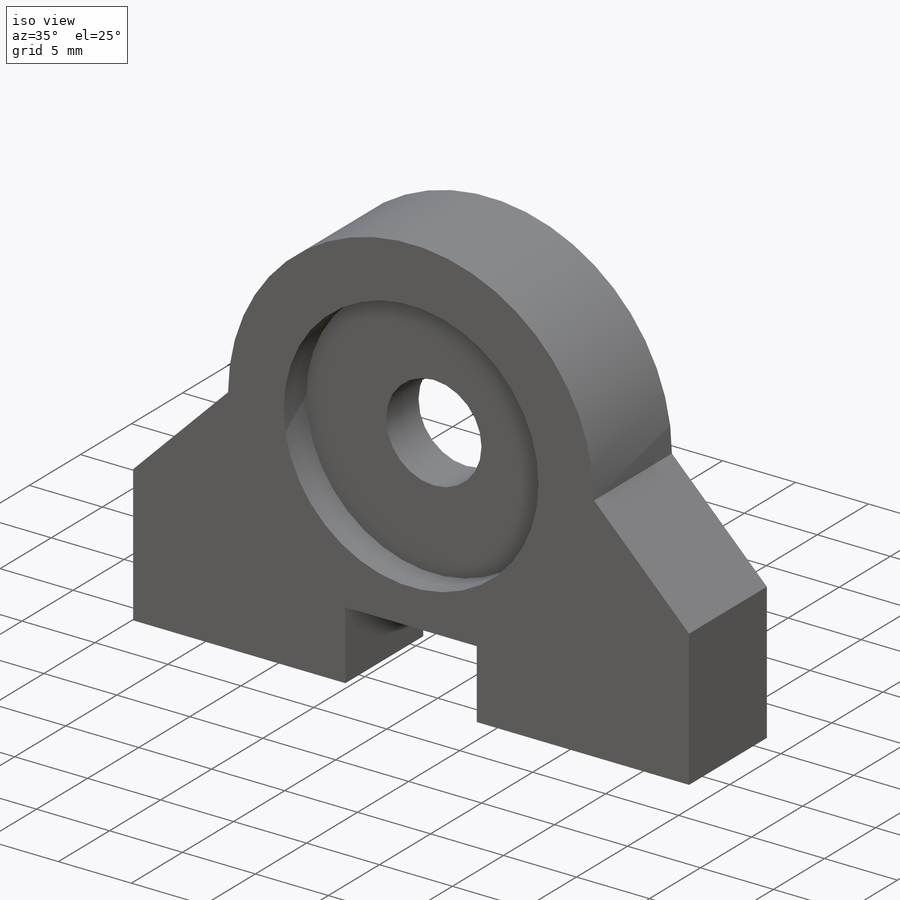
[diagram: iso view]
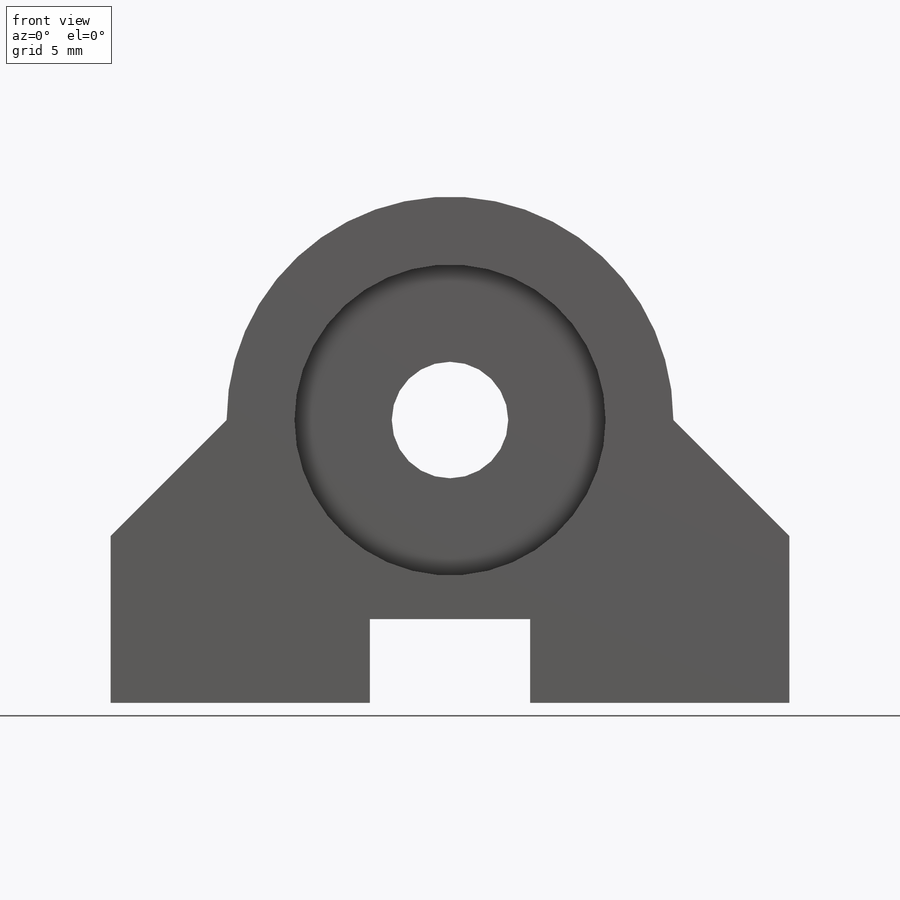
[diagram: front view]
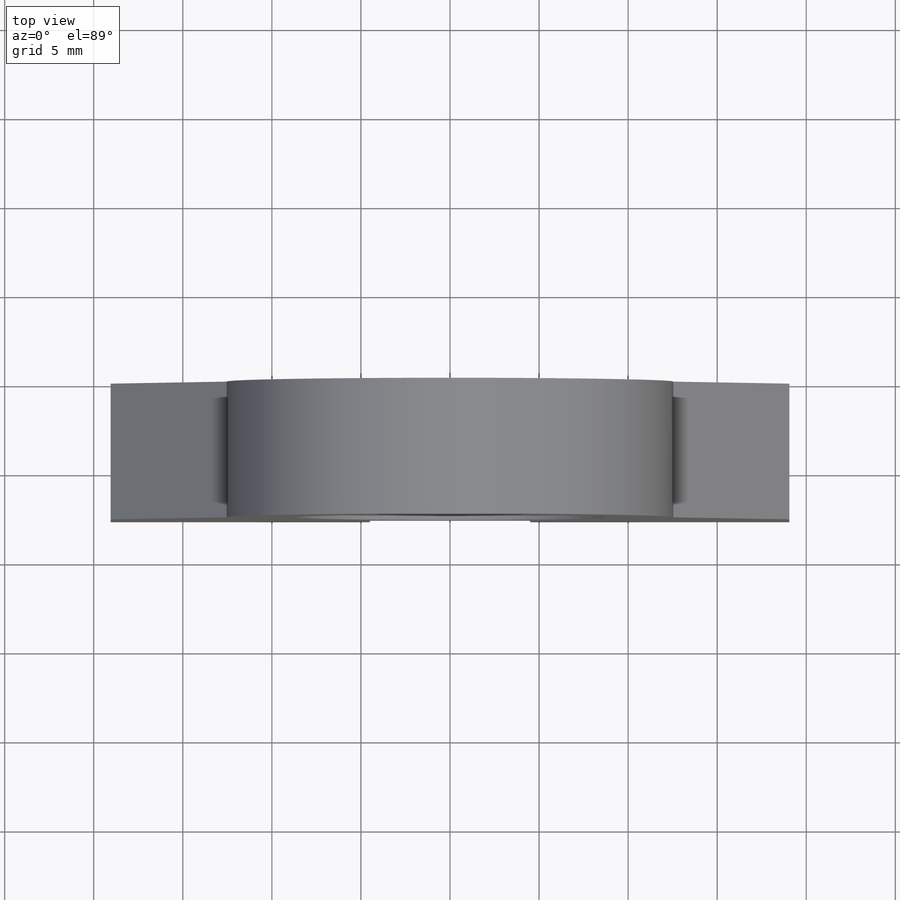
[diagram: top view]
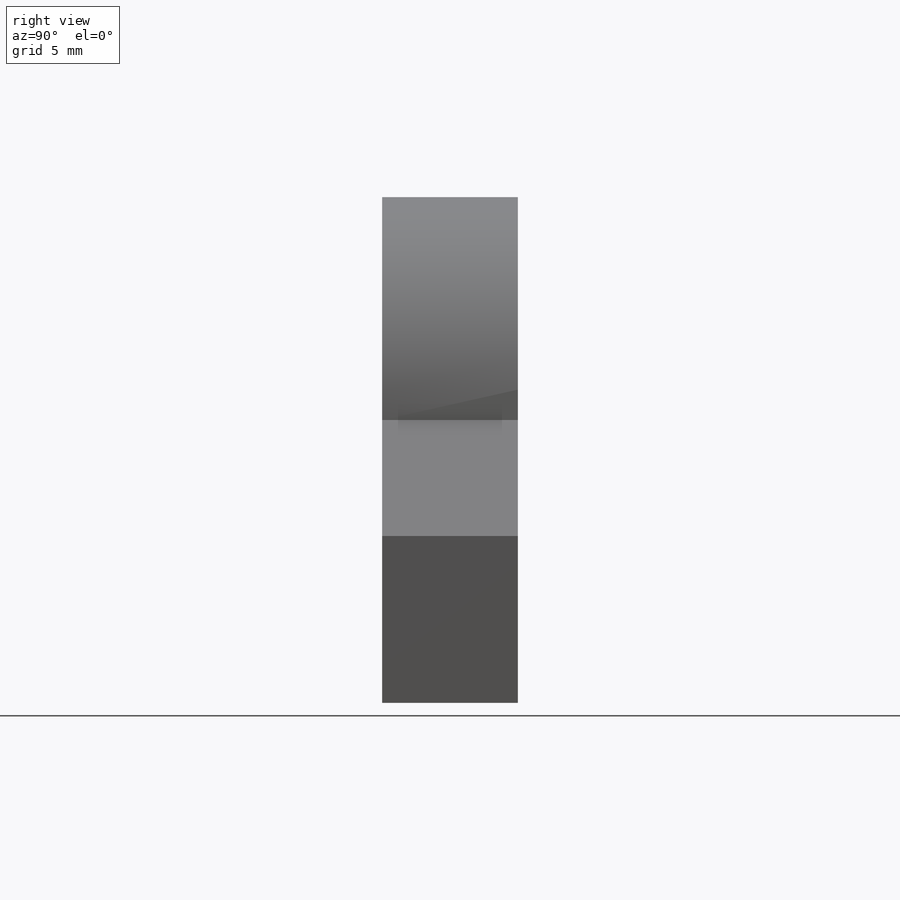
[diagram: right view]
SOLIDWORKS PART (.sldprt)
format: sldprt  version: not decoded by parser v0  size: 351,744 bytes
history: native  units: mm
features: sketch x3, extrude x2, material x1, plane x1, cut_extrude x1 (+13 scaffold rows collapsed)
feature tree (21):
  scaffold x13  (default folders/planes/origin — collapsed)
  material  "Material <not specified>"
  sketch  "Sketch1"  dims[c1.D6=17.4625mm c1.D3=15.875mm c1.D1=9.0mm c1.D2=4.699mm c2.D3=28.448mm c2.D4=31.75mm c2.D5=15.875mm c3.D3=3.81mm c3.D4=~6.176366mm c4.D4=45.0deg c4.D7=38.1mm]
  extrude  "Boss-Extrude1"  Depth=7.62mm
  plane  "Plane1"
  sketch  "Sketch3"  dims[D1=6.5405mm D2=17.4752mm]
  extrude  "Boss-Extrude2"  Depth=1.5875mm
  sketch  "Sketch4"  dims[D1=~3.96748mm D2=11.43mm]
  cut_extrude  "Cut-Extrude1"  Depth=10.16mm
decode coverage: 6 of 6 modeling features carry decoded parameters
note: ~ marks probable driven/reference dimensions
note: suppression state not decoded; provenance and decode notes live in map.json
